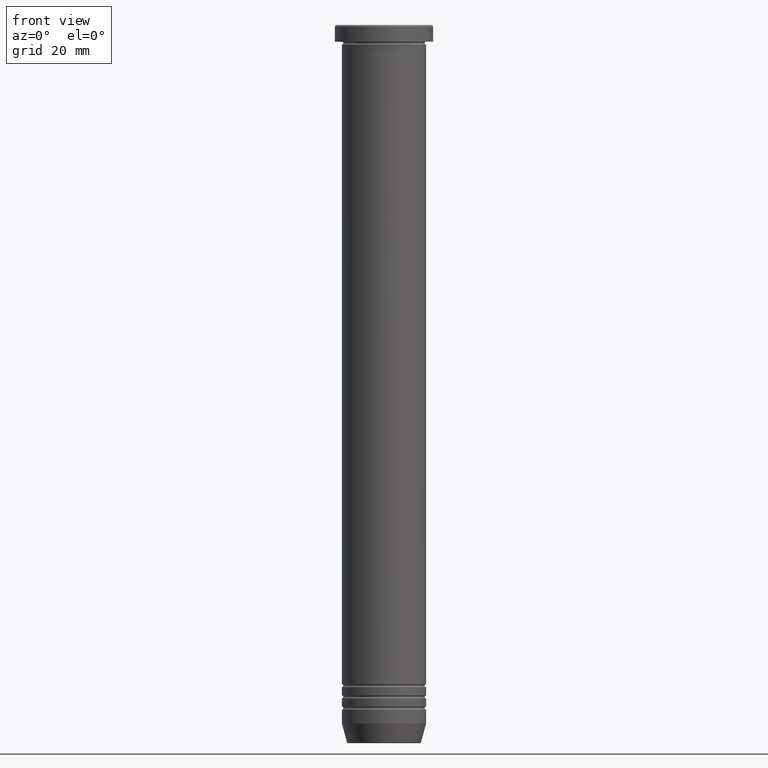
[diagram: clean part render]
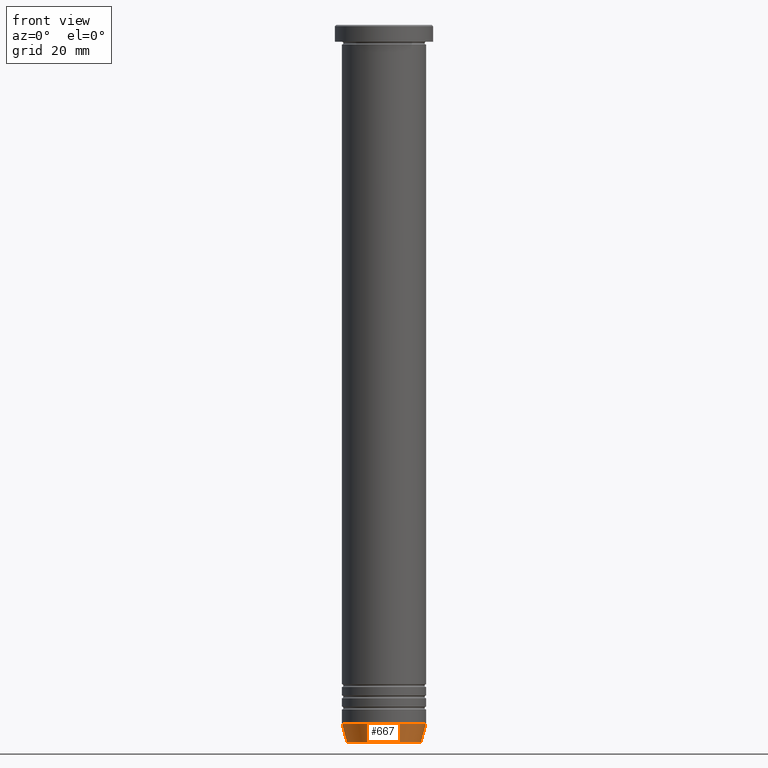
[diagram: same view with one face highlighted and labeled with its STEP entity id]
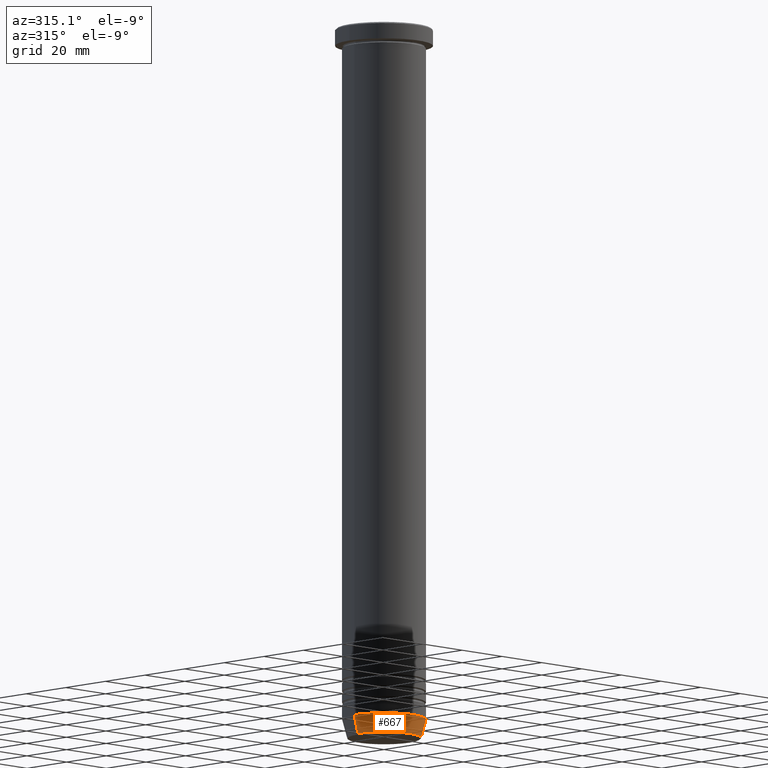
[diagram: same view with one face highlighted and labeled with its STEP entity id]
A machine part, front view. The second image highlights one B-rep face of the part: STEP entity #667.
A second angle (auxiliary view) of the same face is appended — the face is thin or edge-on in the first view.
In plain terms, the highlighted conical surface has half-angle 15 deg.
Its self-contained STEP definition (entity closure, byte-faithful):
#26 = CIRCLE ( 'NONE', #892, 13.22365507213719660 ) ;
#35 = VERTEX_POINT ( 'NONE', #616 ) ;
#99 = AXIS2_PLACEMENT_3D ( 'NONE', #235, #228, #163 ) ;
#113 = VECTOR ( 'NONE', #532, 999.9999999999998863 ) ;
#117 = LINE ( 'NONE', #220, #1063 ) ;
#163 = DIRECTION ( 'NONE',  ( 1.000000000000000000, 0.000000000000000000, 0.000000000000000000 ) ) ;
#175 = DIRECTION ( 'NONE',  ( 1.000000000000000000, 0.000000000000000000, 0.000000000000000000 ) ) ;
#220 = CARTESIAN_POINT ( 'NONE',  ( -13.12435565298214435, 1.607270014129605371E-15, -256.0000000000000000 ) ) ;
#224 = DIRECTION ( 'NONE',  ( -0.2588190451025198513, 3.169619151431753232E-17, 0.9659258262890686453 ) ) ;
#228 = DIRECTION ( 'NONE',  ( -0.000000000000000000, -0.000000000000000000, 1.000000000000000000 ) ) ;
#235 = CARTESIAN_POINT ( 'NONE',  ( 0.000000000000000000, 0.000000000000000000, -256.0000000000000000 ) ) ;
#268 = DIRECTION ( 'NONE',  ( -0.000000000000000000, -0.000000000000000000, 1.000000000000000000 ) ) ;
#299 = EDGE_LOOP ( 'NONE', ( #905, #306, #832, #811 ) ) ;
#306 = ORIENTED_EDGE ( 'NONE', *, *, #795, .T. ) ;
#321 = EDGE_CURVE ( 'NONE', #35, #546, #1036, .T. ) ;
#353 = VERTEX_POINT ( 'NONE', #724 ) ;
#428 = AXIS2_PLACEMENT_3D ( 'NONE', #1058, #268, #175 ) ;
#451 = EDGE_CURVE ( 'NONE', #1012, #546, #485, .T. ) ;
#485 = CIRCLE ( 'NONE', #428, 14.99999999999999822 ) ;
#496 = FACE_OUTER_BOUND ( 'NONE', #299, .T. ) ;
#531 = DIRECTION ( 'NONE',  ( -0.000000000000000000, -0.000000000000000000, 1.000000000000000000 ) ) ;
#532 = DIRECTION ( 'NONE',  ( 0.2588190451025198513, 0.000000000000000000, 0.9659258262890686453 ) ) ;
#546 = VERTEX_POINT ( 'NONE', #558 ) ;
#558 = CARTESIAN_POINT ( 'NONE',  ( 14.99999999999999822, 0.000000000000000000, -249.0000000000000000 ) ) ;
#616 = CARTESIAN_POINT ( 'NONE',  ( 13.22365507213719660, 0.000000000000000000, -255.6294095225512422 ) ) ;
#618 = CARTESIAN_POINT ( 'NONE',  ( 0.000000000000000000, 0.000000000000000000, -255.6294095225512422 ) ) ;
#623 = CARTESIAN_POINT ( 'NONE',  ( -14.99999999999999822, 1.836970198721029589E-15, -249.0000000000000000 ) ) ;
#667 = ADVANCED_FACE ( 'NONE', ( #496 ), #1141, .T. ) ;
#703 = CARTESIAN_POINT ( 'NONE',  ( 13.12435565298214435, 0.000000000000000000, -256.0000000000000000 ) ) ;
#724 = CARTESIAN_POINT ( 'NONE',  ( -13.22365507213719660, 1.728200442216588780E-15, -255.6294095225512422 ) ) ;
#795 = EDGE_CURVE ( 'NONE', #353, #35, #26, .T. ) ;
#811 = ORIENTED_EDGE ( 'NONE', *, *, #451, .F. ) ;
#832 = ORIENTED_EDGE ( 'NONE', *, *, #321, .T. ) ;
#888 = DIRECTION ( 'NONE',  ( -1.000000000000000000, 0.000000000000000000, 0.000000000000000000 ) ) ;
#892 = AXIS2_PLACEMENT_3D ( 'NONE', #618, #531, #888 ) ;
#905 = ORIENTED_EDGE ( 'NONE', *, *, #1127, .F. ) ;
#1012 = VERTEX_POINT ( 'NONE', #623 ) ;
#1036 = LINE ( 'NONE', #703, #113 ) ;
#1058 = CARTESIAN_POINT ( 'NONE',  ( 0.000000000000000000, 0.000000000000000000, -249.0000000000000000 ) ) ;
#1063 = VECTOR ( 'NONE', #224, 999.9999999999998863 ) ;
#1127 = EDGE_CURVE ( 'NONE', #353, #1012, #117, .T. ) ;
#1141 = CONICAL_SURFACE ( 'NONE', #99, 13.12435565298214435, 0.2617993877991484641 ) ;